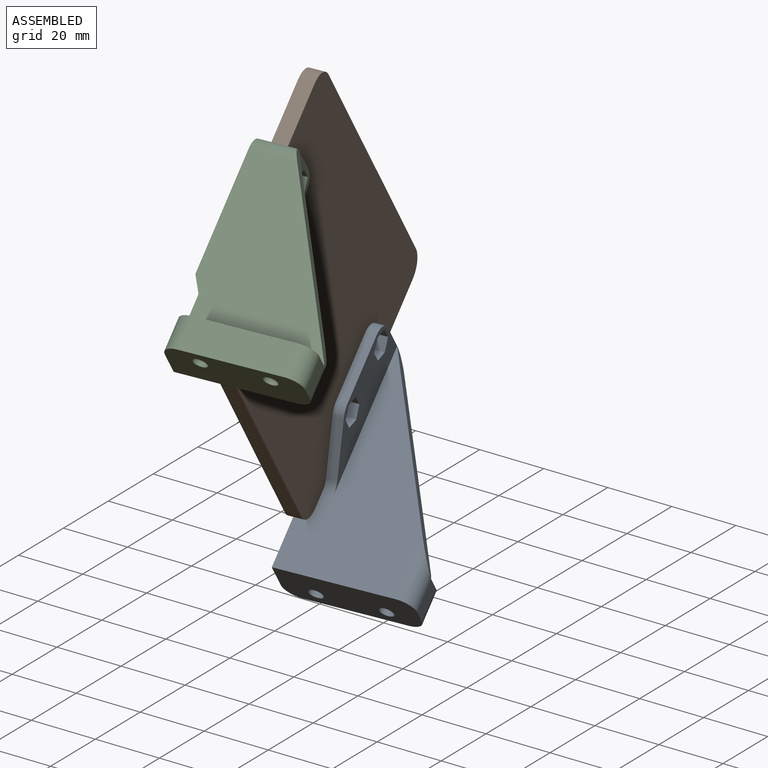
[diagram: assembled view]
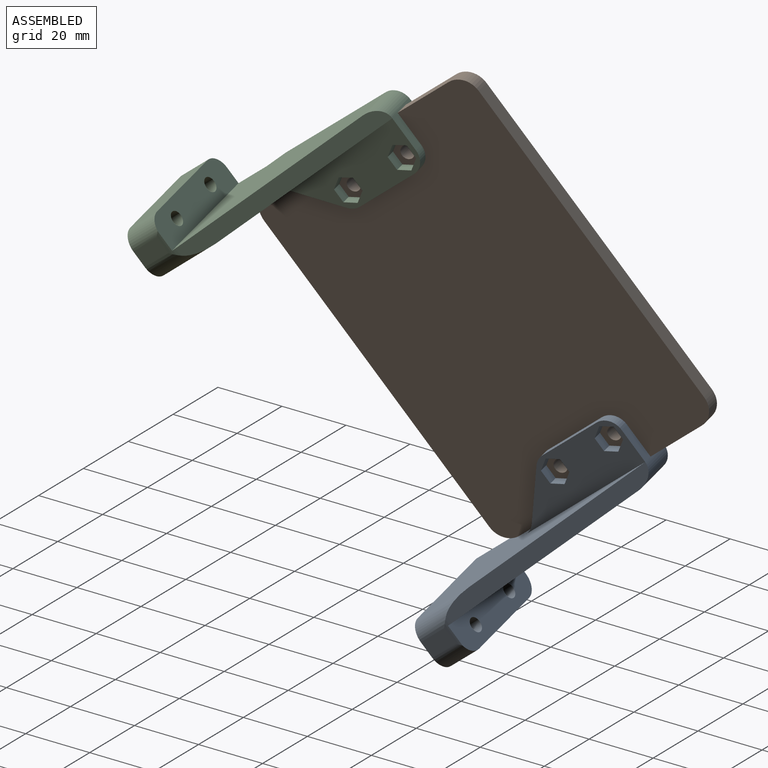
[diagram: assembled view, second angle]
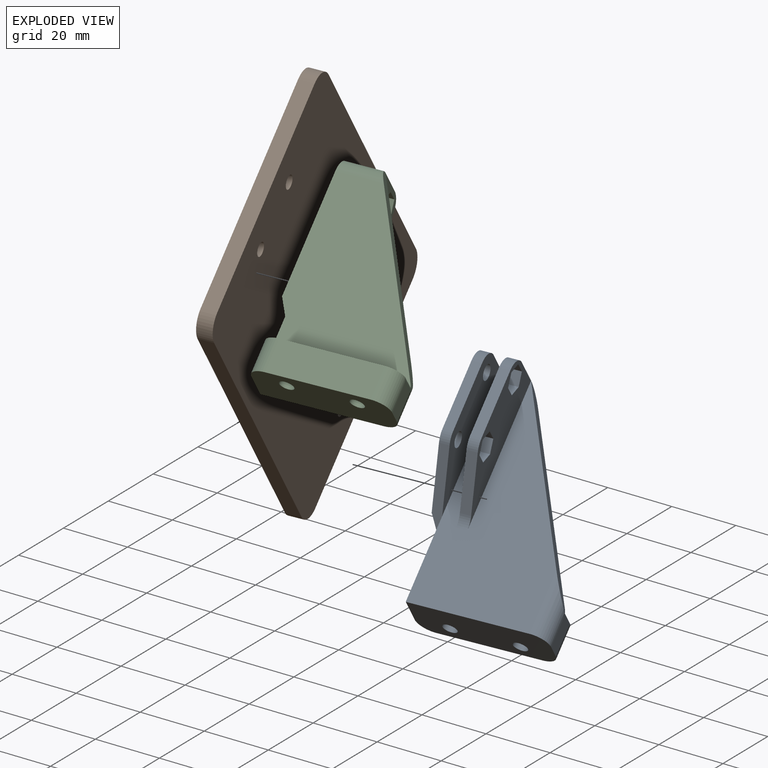
[diagram: exploded view]
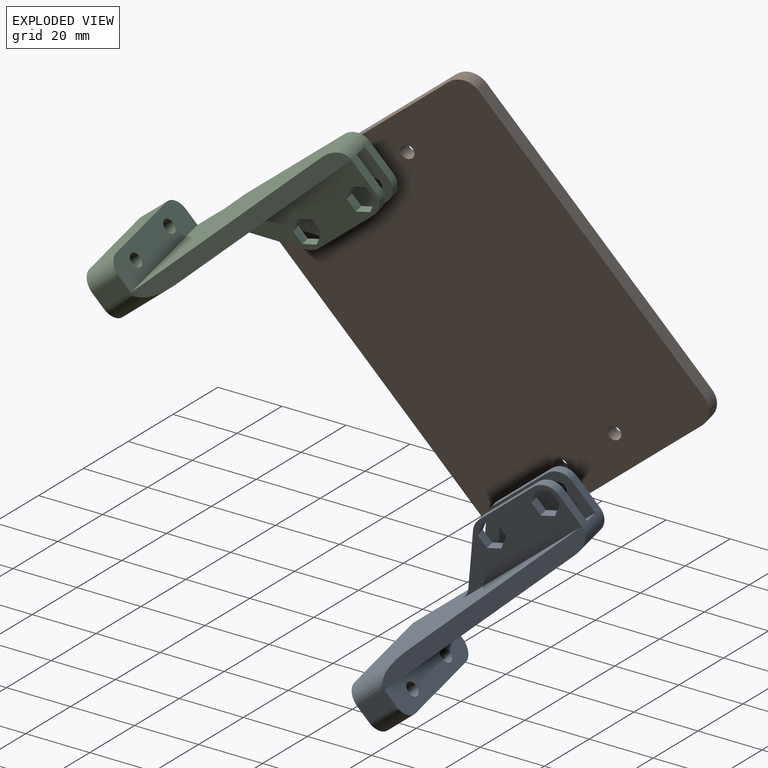
[diagram: exploded view, second angle]
ASSEMBLY  parts=3 mates=6
PART A: 46 faces, bbox 43x68x30.3 mm
  f0: plane 10.25x3.2mm, normal (0,-1,0), area 32.8mm2, adj f16,f17,f35,f39
  f1: plane 25.5x10mm, normal (-1,0,0), area 165mm2, adj f2,f5,f6,f9,f14,f43
  f2: plane 68x35mm, normal (0,0,-1), area 1576.7mm2, adj f1,f6,f8,f10,f16,f17,f34,f39
  f3: plane 8.71x5mm, normal (1,0,0), area 43.6mm2, adj f6,f40,f41,f42
  f4: plane 30x10mm, normal (0,0,1), area 300mm2, adj f5,f6,f40,f43
  f5: plane 39.83x10mm, normal (0,-1,0), area 359.2mm2, adj f1,f4,f9,f40,f41,f43,f44,f45
  f6: plane 40x15mm, normal (0,1,0), area 554.9mm2, adj f1,f2,f3,f4,f40,f42,f43,f44
  f7: plane 10.25x3mm, normal (0,-1,0), area 30.7mm2, adj f10,f15,f37,f39
  f8: plane 56.87x31.38mm, normal (0.88,-0.48,0), area 311.9mm2, adj f2,f9,f39,f41,f42
  f9: plane 53x42.83mm, normal (0,0,1), area 1464.7mm2, adj f1,f5,f8,f15,f32,f39,f41
  f10: plane 42.5x15.25mm, normal (1,0,0), area 494.1mm2, adj f2,f7,f11,f12,f13,f14,f37,f38
  f11: plane 20.18x3mm, normal (0,0,-1), area 60.5mm2, adj f10,f15,f37,f38
  f12: cylinder r=2.25mm len=4.5mm, axis (1,0,0), area 42.4mm2, adj f10,f15
  f13: cylinder r=2.25mm len=4.5mm, axis (1,0,0), area 42.4mm2, adj f10,f15
  f14: plane 18.79x18.79mm, normal (0,0.71,-0.71), area 68.7mm2, adj f1,f10,f15,f32,f33,f38
  f15: plane 42.5x20.25mm, normal (-1,0,0), area 700.3mm2, adj f7,f9,f11,f12,f13,f14,f32,f33
  f16: plane 44.57x15.25mm, normal (1,0,0), area 439.2mm2, adj f0,f2,f18,f19,f20,f21,f22,f23
  f17: plane 44.57x15.25mm, normal (-1,0,0), area 439.2mm2, adj f0,f2,f18,f19,f20,f21,f22,f23
  f18: plane 12.32x12.32mm, normal (0,0.71,-0.71), area 55.8mm2, adj f16,f17,f34,f36
  f19: plane 20.18x3.2mm, normal (0,0,-1), area 64.6mm2, adj f16,f17,f35,f36
  f20: plane 4.1x3.2mm, normal (0,1,0), area 13.1mm2, adj f16,f17,f21,f30
  f21: plane 3.55x3.2mm, normal (0,0.5,-0.87), area 13.1mm2, adj f16,f17,f20,f22
  f22: plane 3.55x3.2mm, normal (0,-0.5,-0.87), area 13.1mm2, adj f16,f17,f21,f23
  f23: plane 4.1x3.2mm, normal (0,-1,0), area 13.1mm2, adj f16,f17,f22,f24
  f24: plane 3.55x3.2mm, normal (0,-0.5,0.87), area 13.1mm2, adj f16,f17,f23,f30
  f25: plane 4.1x3.2mm, normal (0,-1,0), area 13.1mm2, adj f16,f17,f26,f31
  f26: plane 3.55x3.2mm, normal (0,-0.5,0.87), area 13.1mm2, adj f16,f17,f25,f27
  f27: plane 3.55x3.2mm, normal (0,0.5,0.87), area 13.1mm2, adj f16,f17,f26,f28
  f28: plane 4.1x3.2mm, normal (0,1,0), area 13.1mm2, adj f16,f17,f27,f29
  f29: plane 3.55x3.2mm, normal (0,0.5,-0.87), area 13.1mm2, adj f16,f17,f28,f31
  f30: plane 3.55x3.2mm, normal (0,0.5,0.87), area 13.1mm2, adj f16,f17,f20,f24
  f31: plane 3.55x3.2mm, normal (0,-0.5,-0.87), area 13.1mm2, adj f16,f17,f25,f29
  f32: plane 5.2x5mm, normal (-0.87,0.5,0), area 15.6mm2, adj f9,f14,f15,f33
  f33: plane 0.2x0.11mm, normal (0,0,1), area 0mm2, adj f14,f15,f32
  f34: cylinder r=5mm len=3.54mm, axis (-1,0,0), area 12.6mm2, adj f2,f16,f17,f18
  f35: cylinder r=5mm len=5mm, axis (-1,0,0), area 25.1mm2, adj f0,f16,f17,f19
  f36: cylinder r=5mm len=3.54mm, axis (-1,0,0), area 12.6mm2, adj f16,f17,f18,f19
  f37: cylinder r=5mm len=5mm, axis (-1,0,0), area 23.6mm2, adj f7,f10,f11,f15
  f38: cylinder r=5mm len=3.54mm, axis (1,0,0), area 11.8mm2, adj f10,f11,f14,f15
  f39: cylinder r=5mm len=13.76mm, axis (-1,0,0), area 94.3mm2, adj f0,f2,f7,f8,f9,f15
  f40: cylinder r=5mm len=10mm, axis (0,-1,0), area 77.7mm2, adj f3,f4,f5,f6,f41
  f41: cylinder r=5mm len=8.7mm, axis (0,0,1), area 10.5mm2, adj f3,f5,f8,f9,f40,f42
  f42: cylinder r=5mm len=19.06mm, axis (0,1,0), area 103.3mm2, adj f2,f3,f6,f8,f41
  f43: cylinder r=5mm len=10mm, axis (0,1,0), area 78.5mm2, adj f1,f4,f5,f6
  f44: cylinder r=2.15mm len=10mm, axis (0,1,0), area 135.1mm2, adj f5,f6
  f45: cylinder r=2.15mm len=10mm, axis (0,1,0), area 135.1mm2, adj f5,f6
PART B: 14 faces, bbox 80x4.7x110 mm
  f0: plane 98x4.7mm, normal (1,0,0), area 460.6mm2, adj f1,f11,f12,f13
  f1: cylinder r=6mm len=6mm, axis (0,1,0), area 44.3mm2, adj f0,f2,f12,f13
  f2: plane 68x4.7mm, normal (0,0,1), area 319.6mm2, adj f1,f3,f12,f13
  f3: cylinder r=6mm len=6mm, axis (0,1,0), area 44.3mm2, adj f2,f4,f12,f13
  f4: plane 98x4.7mm, normal (-1,0,0), area 460.6mm2, adj f3,f5,f12,f13
  f5: cylinder r=6mm len=6mm, axis (0,1,0), area 44.3mm2, adj f4,f6,f12,f13
  f6: plane 68x4.7mm, normal (0,0,-1), area 319.6mm2, adj f5,f11,f12,f13
  f7: cylinder r=2mm len=4.7mm, axis (0,1,0), area 59.1mm2, adj f12,f13
  f8: cylinder r=2mm len=4.7mm, axis (0,1,0), area 59.1mm2, adj f12,f13
  f9: cylinder r=2mm len=4.7mm, axis (0,1,0), area 59.1mm2, adj f12,f13
  f10: cylinder r=2mm len=4.7mm, axis (0,1,0), area 59.1mm2, adj f12,f13
  f11: cylinder r=6mm len=6mm, axis (0,1,0), area 44.3mm2, adj f0,f6,f12,f13
  f12: plane 110x80mm, normal (0,-1,0), area 8718.8mm2, adj f0,f1,f2,f3,f4,f5,f6,f7
  f13: plane 110x80mm, normal (0,1,0), area 8718.8mm2, adj f0,f1,f2,f3,f4,f5,f6,f7
PART C: 46 faces, bbox 43x68x30.3 mm
  f0: plane 10.25x3.2mm, normal (0,-1,0), area 32.8mm2, adj f16,f17,f35,f39
  f1: plane 25.5x10mm, normal (1,0,0), area 165mm2, adj f2,f5,f6,f9,f14,f43
  f2: plane 68x35mm, normal (0,0,-1), area 1576.7mm2, adj f1,f6,f8,f10,f16,f17,f34,f39
  f3: plane 8.71x5mm, normal (-1,0,0), area 43.6mm2, adj f6,f40,f41,f42
  f4: plane 30x10mm, normal (0,0,1), area 300mm2, adj f5,f6,f40,f43
  f5: plane 39.83x10mm, normal (0,-1,0), area 359.2mm2, adj f1,f4,f9,f40,f41,f43,f44,f45
  f6: plane 40x15mm, normal (0,1,0), area 554.9mm2, adj f1,f2,f3,f4,f40,f42,f43,f44
  f7: plane 10.25x3mm, normal (0,-1,0), area 30.7mm2, adj f10,f15,f37,f39
  f8: plane 56.87x31.38mm, normal (-0.88,-0.48,0), area 311.9mm2, adj f2,f9,f39,f41,f42
  f9: plane 53x42.83mm, normal (0,0,1), area 1464.7mm2, adj f1,f5,f8,f15,f32,f39,f41
  f10: plane 42.5x15.25mm, normal (-1,0,0), area 494.1mm2, adj f2,f7,f11,f12,f13,f14,f37,f38
  f11: plane 20.18x3mm, normal (0,0,-1), area 60.5mm2, adj f10,f15,f37,f38
  f12: cylinder r=2.25mm len=4.5mm, axis (-1,0,0), area 42.4mm2, adj f10,f15
  f13: cylinder r=2.25mm len=4.5mm, axis (-1,0,0), area 42.4mm2, adj f10,f15
  f14: plane 18.79x18.79mm, normal (0,0.71,-0.71), area 68.7mm2, adj f1,f10,f15,f32,f33,f38
  f15: plane 42.5x20.25mm, normal (1,0,0), area 700.3mm2, adj f7,f9,f11,f12,f13,f14,f32,f33
  f16: plane 44.57x15.25mm, normal (-1,0,0), area 439.2mm2, adj f0,f2,f18,f19,f20,f21,f22,f23
  f17: plane 44.57x15.25mm, normal (1,0,0), area 439.2mm2, adj f0,f2,f18,f19,f20,f21,f22,f23
  f18: plane 12.32x12.32mm, normal (0,0.71,-0.71), area 55.8mm2, adj f16,f17,f34,f36
  f19: plane 20.18x3.2mm, normal (0,0,-1), area 64.6mm2, adj f16,f17,f35,f36
  f20: plane 4.1x3.2mm, normal (0,1,0), area 13.1mm2, adj f16,f17,f21,f30
  f21: plane 3.55x3.2mm, normal (0,0.5,-0.87), area 13.1mm2, adj f16,f17,f20,f22
  f22: plane 3.55x3.2mm, normal (0,-0.5,-0.87), area 13.1mm2, adj f16,f17,f21,f23
  f23: plane 4.1x3.2mm, normal (0,-1,0), area 13.1mm2, adj f16,f17,f22,f24
  f24: plane 3.55x3.2mm, normal (0,-0.5,0.87), area 13.1mm2, adj f16,f17,f23,f30
  f25: plane 4.1x3.2mm, normal (0,-1,0), area 13.1mm2, adj f16,f17,f26,f31
  f26: plane 3.55x3.2mm, normal (0,-0.5,0.87), area 13.1mm2, adj f16,f17,f25,f27
  f27: plane 3.55x3.2mm, normal (0,0.5,0.87), area 13.1mm2, adj f16,f17,f26,f28
  f28: plane 4.1x3.2mm, normal (0,1,0), area 13.1mm2, adj f16,f17,f27,f29
  f29: plane 3.55x3.2mm, normal (0,0.5,-0.87), area 13.1mm2, adj f16,f17,f28,f31
  f30: plane 3.55x3.2mm, normal (0,0.5,0.87), area 13.1mm2, adj f16,f17,f20,f24
  f31: plane 3.55x3.2mm, normal (0,-0.5,-0.87), area 13.1mm2, adj f16,f17,f25,f29
  f32: plane 5.2x5mm, normal (0.87,0.5,0), area 15.6mm2, adj f9,f14,f15,f33
  f33: plane 0.2x0.11mm, normal (0,0,1), area 0mm2, adj f14,f15,f32
  f34: cylinder r=5mm len=3.54mm, axis (1,0,0), area 12.6mm2, adj f2,f16,f17,f18
  f35: cylinder r=5mm len=5mm, axis (1,0,0), area 25.1mm2, adj f0,f16,f17,f19
  f36: cylinder r=5mm len=3.54mm, axis (1,0,0), area 12.6mm2, adj f16,f17,f18,f19
  f37: cylinder r=5mm len=5mm, axis (1,0,0), area 23.6mm2, adj f7,f10,f11,f15
  f38: cylinder r=5mm len=3.54mm, axis (-1,0,0), area 11.8mm2, adj f10,f11,f14,f15
  f39: cylinder r=5mm len=13.76mm, axis (1,0,0), area 94.3mm2, adj f0,f2,f7,f8,f9,f15
  f40: cylinder r=5mm len=10mm, axis (0,-1,0), area 77.7mm2, adj f3,f4,f5,f6,f41
  f41: cylinder r=5mm len=8.7mm, axis (0,0,1), area 10.5mm2, adj f3,f5,f8,f9,f40,f42
  f42: cylinder r=5mm len=19.06mm, axis (0,1,0), area 103.3mm2, adj f2,f3,f6,f8,f41
  f43: cylinder r=5mm len=10mm, axis (0,1,0), area 78.5mm2, adj f1,f4,f5,f6
  f44: cylinder r=2.15mm len=10mm, axis (0,1,0), area 135.1mm2, adj f5,f6
  f45: cylinder r=2.15mm len=10mm, axis (0,1,0), area 135.1mm2, adj f5,f6
PLACE A rot(axis=(-1,-0.07,0.06),141.4deg) t=(0.95,-102.64,-23.29)mm
PLACE B rot(axis=(0.35,-0.25,0.91),104.1deg) t=(4.22,-95.42,52.68)mm
PLACE C rot(axis=(-0.06,0.33,-0.94),172deg) t=(17.5,-170.06,62.05)mm
MATE planar B.f13 <-> A.f10  axis (-0.98,-0.17,0.06) through (4.22,-95.42,52.68)mm
MATE planar C.f10 <-> B.f13  axis (0.98,0.17,-0.06) through (11.76,-127.33,88.15)mm
MATE parallel C.f2 <-> B.f2  axis (-0.15,0.61,-0.78) through (29.79,-147.84,77.21)mm
MATE parallel B.f6 <-> A.f2  axis (-0.15,0.61,-0.78) through (-1.74,-61.32,9.88)mm
MATE cylindrical A.f13 <-> B.f9  axis (0.98,0.17,-0.06) through (-3.08,-75.82,11.58)mm
MATE cylindrical B.f8 <-> C.f12  axis (-0.98,-0.17,0.06) through (12.36,-114.88,93.74)mm
